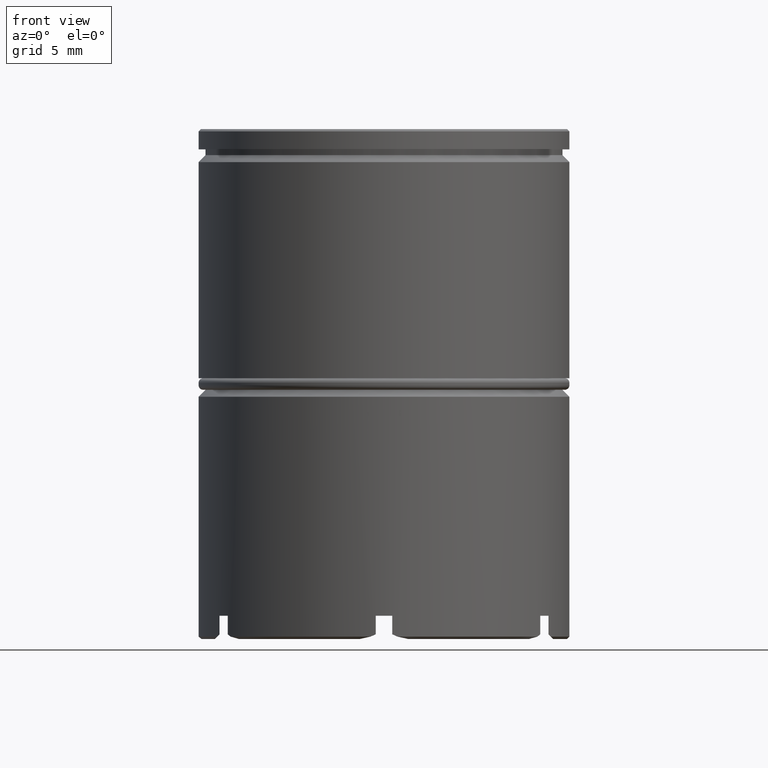
[diagram: clean part render]
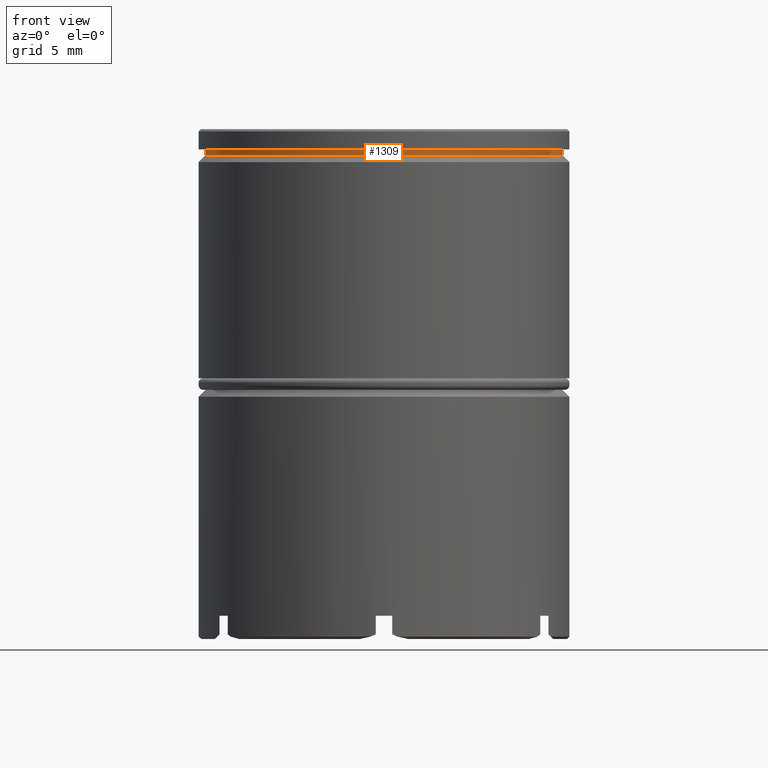
[diagram: same view with one face highlighted and labeled with its STEP entity id]
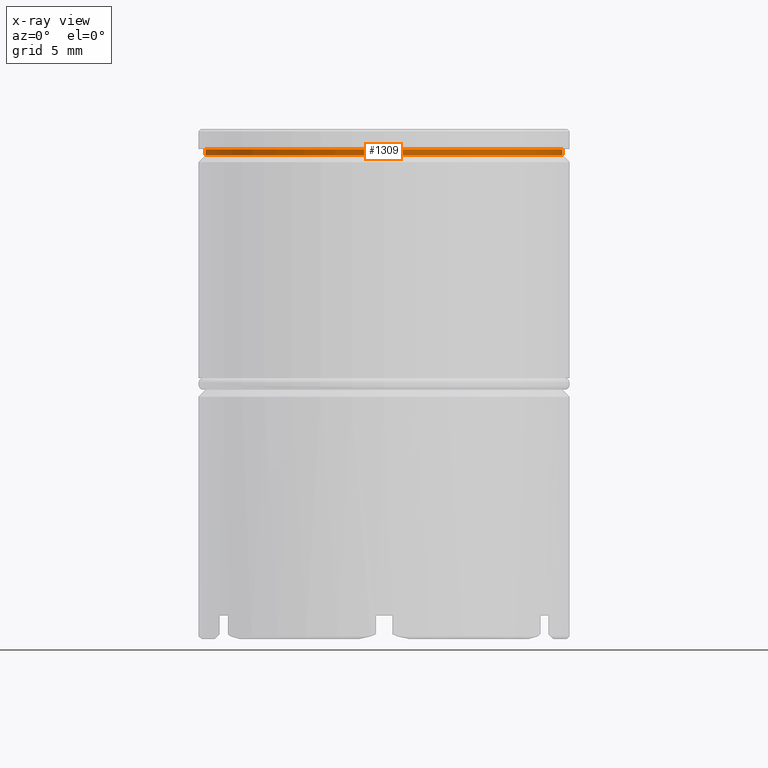
[diagram: x-ray of the same camera — body ghosted, the highlighted face saturated]
A machine part, front view. The second image highlights one B-rep face of the part: STEP entity #1309.
The next image is the same camera in x-ray: the body ghosted, the highlighted face saturated — about 0% of this face is hidden behind the body in this view.
In plain terms, the highlighted cylindrical surface (partial cylindrical patch) has radius 7.7 mm, axis along (-0, -0, 1).
Its self-contained STEP definition (entity closure, byte-faithful):
#26 = DIRECTION ( 'NONE',  ( -0.000000000000000000, -0.000000000000000000, 1.000000000000000000 ) ) ;
#46 = AXIS2_PLACEMENT_3D ( 'NONE', #1489, #1376, #478 ) ;
#150 = CARTESIAN_POINT ( 'NONE',  ( 0.000000000000000000, 0.000000000000000000, -1.125000000000000222 ) ) ;
#172 = LINE ( 'NONE', #303, #897 ) ;
#218 = ORIENTED_EDGE ( 'NONE', *, *, #819, .T. ) ;
#272 = VERTEX_POINT ( 'NONE', #1431 ) ;
#303 = CARTESIAN_POINT ( 'NONE',  ( 7.700000000000000178, 0.000000000000000000, 0.000000000000000000 ) ) ;
#451 = EDGE_CURVE ( 'NONE', #778, #1561, #581, .T. ) ;
#478 = DIRECTION ( 'NONE',  ( 1.000000000000000000, 0.000000000000000000, 0.000000000000000000 ) ) ;
#511 = FACE_OUTER_BOUND ( 'NONE', #721, .T. ) ;
#529 = DIRECTION ( 'NONE',  ( 1.000000000000000000, 0.000000000000000000, 0.000000000000000000 ) ) ;
#581 = CIRCLE ( 'NONE', #1444, 7.700000000000000178 ) ;
#644 = DIRECTION ( 'NONE',  ( -0.000000000000000000, -0.000000000000000000, 1.000000000000000000 ) ) ;
#673 = LINE ( 'NONE', #899, #1242 ) ;
#699 = DIRECTION ( 'NONE',  ( -0.000000000000000000, -0.000000000000000000, 1.000000000000000000 ) ) ;
#715 = CARTESIAN_POINT ( 'NONE',  ( 7.700000000000000178, 0.000000000000000000, -1.125000000000000222 ) ) ;
#721 = EDGE_LOOP ( 'NONE', ( #1012, #1516, #218, #1016 ) ) ;
#778 = VERTEX_POINT ( 'NONE', #1280 ) ;
#794 = EDGE_CURVE ( 'NONE', #778, #272, #673, .T. ) ;
#801 = VERTEX_POINT ( 'NONE', #1396 ) ;
#819 = EDGE_CURVE ( 'NONE', #1561, #801, #172, .T. ) ;
#897 = VECTOR ( 'NONE', #699, 1000.000000000000000 ) ;
#899 = CARTESIAN_POINT ( 'NONE',  ( -7.700000000000000178, 9.429780353434619030E-16, 0.000000000000000000 ) ) ;
#954 = CIRCLE ( 'NONE', #46, 7.700000000000000178 ) ;
#1012 = ORIENTED_EDGE ( 'NONE', *, *, #794, .F. ) ;
#1016 = ORIENTED_EDGE ( 'NONE', *, *, #1203, .F. ) ;
#1017 = CYLINDRICAL_SURFACE ( 'NONE', #1062, 7.700000000000000178 ) ;
#1050 = DIRECTION ( 'NONE',  ( -0.000000000000000000, -0.000000000000000000, 1.000000000000000000 ) ) ;
#1062 = AXIS2_PLACEMENT_3D ( 'NONE', #1623, #644, #1110 ) ;
#1110 = DIRECTION ( 'NONE',  ( 1.000000000000000000, 0.000000000000000000, 0.000000000000000000 ) ) ;
#1203 = EDGE_CURVE ( 'NONE', #272, #801, #954, .T. ) ;
#1242 = VECTOR ( 'NONE', #1050, 1000.000000000000000 ) ;
#1280 = CARTESIAN_POINT ( 'NONE',  ( -7.700000000000000178, 9.429780353434619030E-16, -1.125000000000000222 ) ) ;
#1309 = ADVANCED_FACE ( 'NONE', ( #511 ), #1017, .T. ) ;
#1376 = DIRECTION ( 'NONE',  ( -0.000000000000000000, -0.000000000000000000, 1.000000000000000000 ) ) ;
#1396 = CARTESIAN_POINT ( 'NONE',  ( 7.700000000000000178, 0.000000000000000000, -0.8749999999999998890 ) ) ;
#1431 = CARTESIAN_POINT ( 'NONE',  ( -7.700000000000000178, 9.429780353434619030E-16, -0.8749999999999998890 ) ) ;
#1444 = AXIS2_PLACEMENT_3D ( 'NONE', #150, #26, #529 ) ;
#1489 = CARTESIAN_POINT ( 'NONE',  ( 0.000000000000000000, 0.000000000000000000, -0.8749999999999998890 ) ) ;
#1516 = ORIENTED_EDGE ( 'NONE', *, *, #451, .T. ) ;
#1561 = VERTEX_POINT ( 'NONE', #715 ) ;
#1623 = CARTESIAN_POINT ( 'NONE',  ( 0.000000000000000000, 0.000000000000000000, 0.000000000000000000 ) ) ;